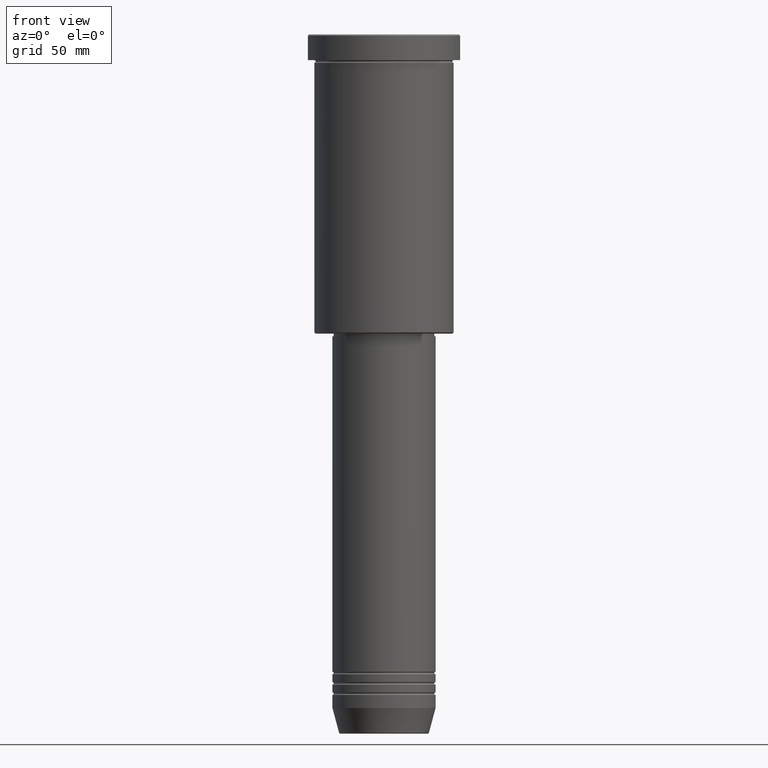
[diagram: clean part render]
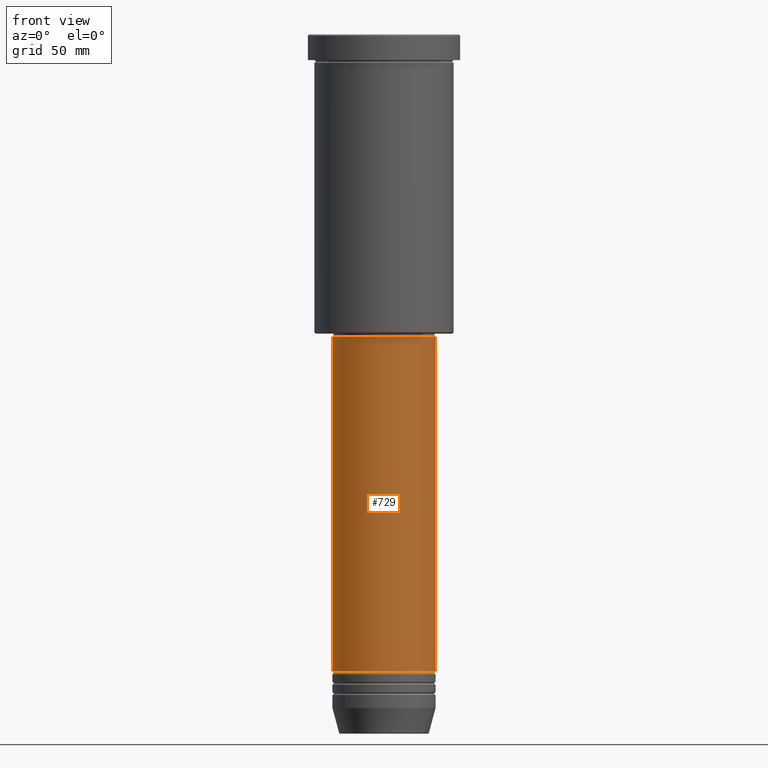
[diagram: same view with one face highlighted and labeled with its STEP entity id]
A machine part, front view. The second image highlights one B-rep face of the part: STEP entity #729.
In plain terms, the highlighted cylindrical surface (partial cylindrical patch) has radius 20 mm, axis along (-0, -0, 1).
Its self-contained STEP definition (entity closure, byte-faithful):
#4 = ORIENTED_EDGE ( 'NONE', *, *, #614, .F. ) ;
#14 = VERTEX_POINT ( 'NONE', #858 ) ;
#45 = VERTEX_POINT ( 'NONE', #872 ) ;
#52 = ORIENTED_EDGE ( 'NONE', *, *, #207, .T. ) ;
#53 = AXIS2_PLACEMENT_3D ( 'NONE', #900, #975, #795 ) ;
#67 = FACE_OUTER_BOUND ( 'NONE', #584, .T. ) ;
#91 = VECTOR ( 'NONE', #255, 1000.000000000000000 ) ;
#96 = CARTESIAN_POINT ( 'NONE',  ( 19.99999999999999645, 0.000000000000000000, -117.0000000000000426 ) ) ;
#111 = ORIENTED_EDGE ( 'NONE', *, *, #393, .T. ) ;
#207 = EDGE_CURVE ( 'NONE', #855, #14, #1111, .T. ) ;
#238 = CIRCLE ( 'NONE', #539, 19.99999999999999645 ) ;
#255 = DIRECTION ( 'NONE',  ( -0.000000000000000000, -0.000000000000000000, 1.000000000000000000 ) ) ;
#261 = LINE ( 'NONE', #433, #91 ) ;
#287 = AXIS2_PLACEMENT_3D ( 'NONE', #530, #535, #1167 ) ;
#288 = ORIENTED_EDGE ( 'NONE', *, *, #794, .F. ) ;
#329 = VECTOR ( 'NONE', #843, 1000.000000000000000 ) ;
#339 = CYLINDRICAL_SURFACE ( 'NONE', #53, 19.99999999999999645 ) ;
#356 = VERTEX_POINT ( 'NONE', #96 ) ;
#393 = EDGE_CURVE ( 'NONE', #14, #356, #1122, .T. ) ;
#433 = CARTESIAN_POINT ( 'NONE',  ( -19.99999999999999645, 2.449293598294706119E-15, 0.000000000000000000 ) ) ;
#530 = CARTESIAN_POINT ( 'NONE',  ( 0.000000000000000000, 0.000000000000000000, -246.9999999999999147 ) ) ;
#535 = DIRECTION ( 'NONE',  ( -0.000000000000000000, -0.000000000000000000, 1.000000000000000000 ) ) ;
#539 = AXIS2_PLACEMENT_3D ( 'NONE', #1112, #646, #908 ) ;
#584 = EDGE_LOOP ( 'NONE', ( #4, #52, #111, #288 ) ) ;
#614 = EDGE_CURVE ( 'NONE', #855, #45, #261, .T. ) ;
#646 = DIRECTION ( 'NONE',  ( -0.000000000000000000, -0.000000000000000000, 1.000000000000000000 ) ) ;
#729 = ADVANCED_FACE ( 'NONE', ( #67 ), #339, .T. ) ;
#794 = EDGE_CURVE ( 'NONE', #45, #356, #238, .T. ) ;
#795 = DIRECTION ( 'NONE',  ( 1.000000000000000000, 0.000000000000000000, 0.000000000000000000 ) ) ;
#823 = CARTESIAN_POINT ( 'NONE',  ( -20.00000000000000000, 2.449293598294706513E-15, -246.9999999999999147 ) ) ;
#837 = CARTESIAN_POINT ( 'NONE',  ( 19.99999999999999645, 0.000000000000000000, 0.000000000000000000 ) ) ;
#843 = DIRECTION ( 'NONE',  ( -0.000000000000000000, -0.000000000000000000, 1.000000000000000000 ) ) ;
#855 = VERTEX_POINT ( 'NONE', #823 ) ;
#858 = CARTESIAN_POINT ( 'NONE',  ( 20.00000000000000000, 0.000000000000000000, -246.9999999999999147 ) ) ;
#872 = CARTESIAN_POINT ( 'NONE',  ( -19.99999999999999645, 2.449293598294706119E-15, -117.0000000000000426 ) ) ;
#900 = CARTESIAN_POINT ( 'NONE',  ( 0.000000000000000000, 0.000000000000000000, 0.000000000000000000 ) ) ;
#908 = DIRECTION ( 'NONE',  ( 1.000000000000000000, 0.000000000000000000, 0.000000000000000000 ) ) ;
#975 = DIRECTION ( 'NONE',  ( -0.000000000000000000, -0.000000000000000000, 1.000000000000000000 ) ) ;
#1111 = CIRCLE ( 'NONE', #287, 20.00000000000000000 ) ;
#1112 = CARTESIAN_POINT ( 'NONE',  ( 0.000000000000000000, 0.000000000000000000, -117.0000000000000426 ) ) ;
#1122 = LINE ( 'NONE', #837, #329 ) ;
#1167 = DIRECTION ( 'NONE',  ( 1.000000000000000000, 0.000000000000000000, 0.000000000000000000 ) ) ;